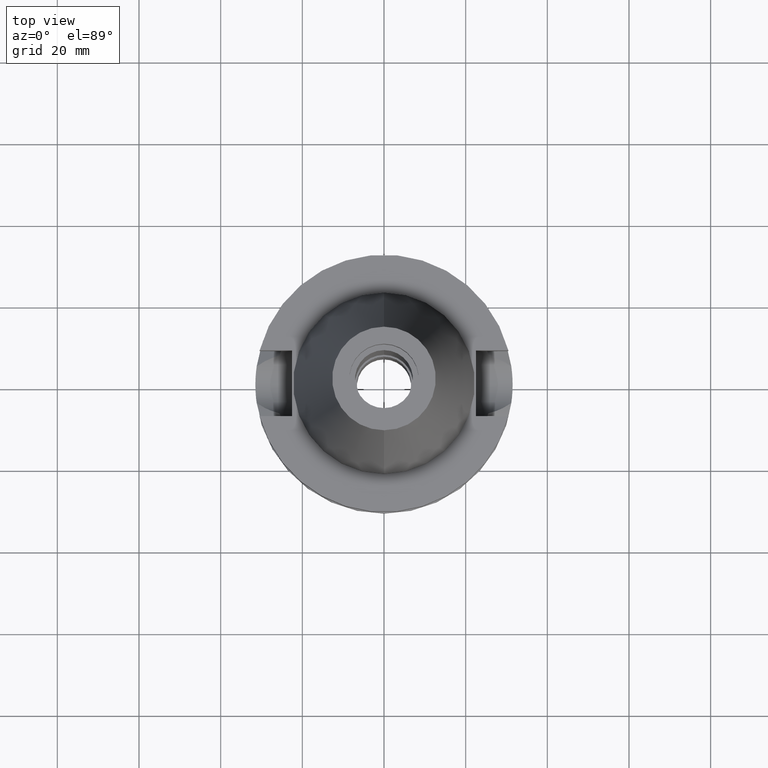
[diagram: clean part render]
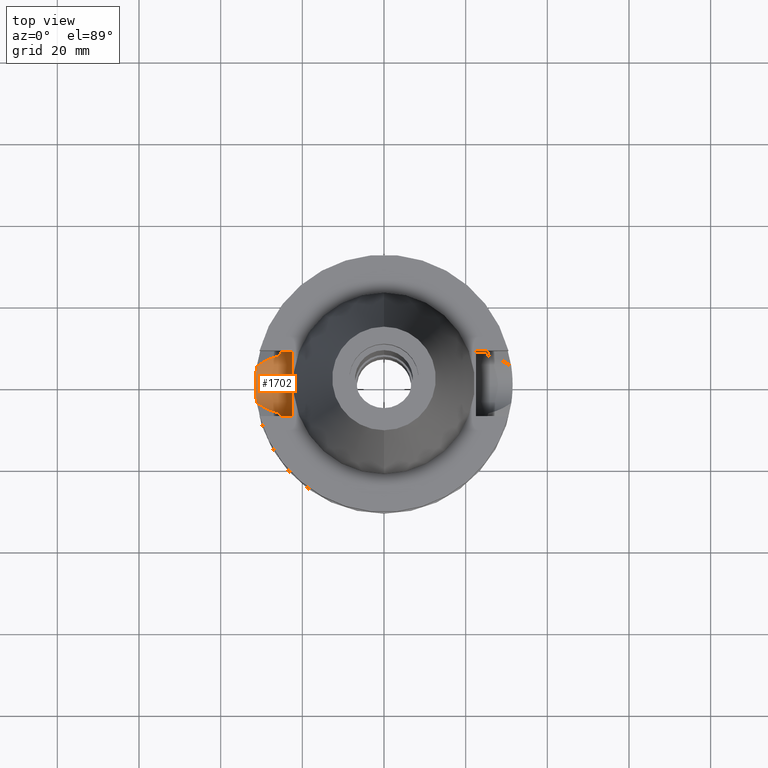
[diagram: same view with one face highlighted and labeled with its STEP entity id]
A machine part, top view. The second image highlights one B-rep face of the part: STEP entity #1702.
In plain terms, the highlighted cylindrical surface (edge-blend (fillet) strip) has radius 8.05 mm, axis along (-1, 0, 0).
Its self-contained STEP definition (entity closure, byte-faithful):
#97 = CARTESIAN_POINT ( 'NONE',  ( -25.53175183775000079, -7.097862220092999941, -18.74774300138999905 ) ) ;
#98 = CARTESIAN_POINT ( 'NONE',  ( -27.80186762477991280, 6.340377823589463446, -19.91138290903389674 ) ) ;
#117 = CARTESIAN_POINT ( 'NONE',  ( -28.96241475499983409, -5.826829770395927532, -20.50446749709296412 ) ) ;
#130 = FACE_OUTER_BOUND ( 'NONE', #1885, .T. ) ;
#143 = VERTEX_POINT ( 'NONE', #1389 ) ;
#172 = DIRECTION ( 'NONE',  ( 0.0000000000000000000, 0.0000000000000000000, -1.000000000000000000 ) ) ;
#183 = ORIENTED_EDGE ( 'NONE', *, *, #1530, .T. ) ;
#195 = VERTEX_POINT ( 'NONE', #1158 ) ;
#215 = CARTESIAN_POINT ( 'NONE',  ( -25.32844777903620681, -7.792527725354012169, -16.96974754110893002 ) ) ;
#265 = ORIENTED_EDGE ( 'NONE', *, *, #1101, .F. ) ;
#274 = B_SPLINE_CURVE_WITH_KNOTS ( 'NONE', 3,
 ( #3299, #3600, #3047, #516, #1899, #498, #1628, #2478, #215, #1342, #2424, #1063, #1587, #2773 ),
 .UNSPECIFIED., .F., .F.,
 ( 4, 2, 2, 1, 1, 2, 2, 4 ),
 ( 0.0000000000000000000, 0.2500000000000041078, 0.3750000000000073830, 0.4375000000000078826, 0.4687500000000093259, 0.4843750000000099365, 0.5000000000000105471, 1.000000000000000000 ),
 .UNSPECIFIED. ) ;
#309 = CARTESIAN_POINT ( 'NONE',  ( -31.28470547692829840, -3.750768100159064034, -22.12755020538207518 ) ) ;
#325 = CARTESIAN_POINT ( 'NONE',  ( -31.49253540246489536, -0.7829780335693035109, -22.97155374604022171 ) ) ;
#333 = CARTESIAN_POINT ( 'NONE',  ( -26.79449840290805795, 6.719479771365198140, -19.39575631949134760 ) ) ;
#344 = CARTESIAN_POINT ( 'NONE',  ( -31.44527646887210182, -1.857544946896778848, -22.78339309170337756 ) ) ;
#351 = CARTESIAN_POINT ( 'NONE',  ( -29.08039899030497466, 5.770905817290205242, -20.56470933253821443 ) ) ;
#384 = CARTESIAN_POINT ( 'NONE',  ( -31.17899877608999759, 4.485536235554000051, -21.63449434733000132 ) ) ;
#402 = CARTESIAN_POINT ( 'NONE',  ( -29.39981889050912400, -5.605877746671926509, -20.72777599618146382 ) ) ;
#408 = VERTEX_POINT ( 'NONE', #3545 ) ;
#411 = CARTESIAN_POINT ( 'NONE',  ( -25.29454954118293486, 7.902007388341837135, -16.48871296864345126 ) ) ;
#461 = CYLINDRICAL_SURFACE ( 'NONE', #2318, 8.050000000000000711 ) ;
#498 = CARTESIAN_POINT ( 'NONE',  ( -25.35412323723021544, -7.708830947932238331, -17.27007949472962878 ) ) ;
#516 = CARTESIAN_POINT ( 'NONE',  ( -25.39164951572487183, -7.584807667336966652, -17.65197957159458753 ) ) ;
#608 = CARTESIAN_POINT ( 'NONE',  ( -27.56759267384783740, 6.431641194127356798, -19.79151494877947215 ) ) ;
#616 = CARTESIAN_POINT ( 'NONE',  ( -31.50024232868986473, 0.7571333964143366346, -23.00095759426206499 ) ) ;
#621 = CARTESIAN_POINT ( 'NONE',  ( -31.17899877608999759, -4.485536235554000051, -21.63449434733000132 ) ) ;
#629 = VECTOR ( 'NONE', #1299, 1000.000000000000000 ) ;
#666 = CARTESIAN_POINT ( 'NONE',  ( -30.85566715959532402, -4.730837795196603857, -21.46988817411485684 ) ) ;
#710 = CARTESIAN_POINT ( 'NONE',  ( -25.31206084004277912, 7.845614529401188975, -16.75329855850928951 ) ) ;
#741 = CARTESIAN_POINT ( 'NONE',  ( -22.50000000000000000, -8.050000000000000711, -14.94999999999999929 ) ) ;
#776 = CARTESIAN_POINT ( 'NONE',  ( -25.24772266958000344, 8.050000000000000711, -14.94999999999999929 ) ) ;
#853 = CARTESIAN_POINT ( 'NONE',  ( -25.24772266958000344, 8.050000000000000711, -14.94999999999999929 ) ) ;
#872 = CARTESIAN_POINT ( 'NONE',  ( -31.41056491124587069, 2.372237050526222912, -22.64256036890056123 ) ) ;
#887 = CARTESIAN_POINT ( 'NONE',  ( -31.47150128874050168, 1.550917995535984639, -22.89093254494694563 ) ) ;
#911 = CARTESIAN_POINT ( 'NONE',  ( -26.19531547329091481, 6.915459947307001976, -19.08864711216948251 ) ) ;
#974 = EDGE_CURVE ( 'NONE', #3222, #1019, #1982, .T. ) ;
#1019 = VERTEX_POINT ( 'NONE', #2329 ) ;
#1063 = CARTESIAN_POINT ( 'NONE',  ( -25.27269391207093463, -7.973288729731969227, -16.24537813257547469 ) ) ;
#1074 = ORIENTED_EDGE ( 'NONE', *, *, #974, .T. ) ;
#1094 = ORIENTED_EDGE ( 'NONE', *, *, #1647, .F. ) ;
#1101 = EDGE_CURVE ( 'NONE', #3222, #1249, #3304, .T. ) ;
#1151 = CARTESIAN_POINT ( 'NONE',  ( -31.33704727451106820, 3.201741485571319323, -22.33858232039741054 ) ) ;
#1158 = CARTESIAN_POINT ( 'NONE',  ( -22.50000000000000000, -8.050000000000000711, -14.94999999999999929 ) ) ;
#1165 = CARTESIAN_POINT ( 'NONE',  ( -31.17899877608999759, 4.485536235554000051, -21.63449434733000132 ) ) ;
#1169 = CARTESIAN_POINT ( 'NONE',  ( -30.49988824880316329, -4.971524544896593234, -21.28877941382548400 ) ) ;
#1173 = CARTESIAN_POINT ( 'NONE',  ( -29.92556320744147058, 5.316957789776223464, -20.99587040959849915 ) ) ;
#1193 = CARTESIAN_POINT ( 'NONE',  ( -25.43789037938648789, 7.435491690473122084, -18.11672414062482162 ) ) ;
#1228 = CARTESIAN_POINT ( 'NONE',  ( -27.46559892626379451, 6.470389083415211573, -19.73931484843593154 ) ) ;
#1249 = VERTEX_POINT ( 'NONE', #2183 ) ;
#1250 = CARTESIAN_POINT ( 'NONE',  ( -25.31954826170013106, 7.821386849068008296, -16.85495274079638151 ) ) ;
#1270 = CARTESIAN_POINT ( 'NONE',  ( -25.31652402624243337, 7.831177078179816675, -16.81429685340951963 ) ) ;
#1299 = DIRECTION ( 'NONE',  ( -1.000000000000000000, 1.616208268639000174E-14, -1.034373291929000154E-14 ) ) ;
#1342 = CARTESIAN_POINT ( 'NONE',  ( -25.32550670071061916, -7.802071535306239092, -16.93256103013014169 ) ) ;
#1357 = CIRCLE ( 'NONE', #2953, 8.050000000000000711 ) ;
#1380 = DIRECTION ( 'NONE',  ( 1.000000000000000000, 1.551559937893000172E-14, -3.620306521749999889E-14 ) ) ;
#1389 = CARTESIAN_POINT ( 'NONE',  ( -25.24772266958000344, -8.050000000000000711, -14.94999999999999929 ) ) ;
#1427 = CARTESIAN_POINT ( 'NONE',  ( -31.17899877608999759, -4.485536235554000051, -21.63449434733000132 ) ) ;
#1444 = CARTESIAN_POINT ( 'NONE',  ( -31.39027486917530396, 2.628603510742625105, -22.55969012852260747 ) ) ;
#1461 = CARTESIAN_POINT ( 'NONE',  ( -31.43643257257468093, -2.003966855037653261, -22.74771882455730676 ) ) ;
#1480 = CARTESIAN_POINT ( 'NONE',  ( -28.90787425561670432, -5.853261070286155388, -20.47661666354747112 ) ) ;
#1485 = ORIENTED_EDGE ( 'NONE', *, *, #1719, .T. ) ;
#1502 = CARTESIAN_POINT ( 'NONE',  ( -30.86112095437446001, 4.726700172098827757, -21.47266466809871943 ) ) ;
#1530 = EDGE_CURVE ( 'NONE', #1019, #1598, #2903, .T. ) ;
#1543 = CARTESIAN_POINT ( 'NONE',  ( -27.91791818451807217, -6.325778375704873113, -19.97107508805649445 ) ) ;
#1550 = CARTESIAN_POINT ( 'NONE',  ( -25.25396625246039406, 8.030896711162544221, -15.59378553528499012 ) ) ;
#1573 = CARTESIAN_POINT ( 'NONE',  ( -25.32122245610177913, 7.815962707354302985, -16.87706809356129156 ) ) ;
#1584 = DIRECTION ( 'NONE',  ( -1.000000000000000000, 0.0000000000000000000, 0.0000000000000000000 ) ) ;
#1587 = CARTESIAN_POINT ( 'NONE',  ( -25.24772266957999989, -8.049999999999981171, -15.58999736273363546 ) ) ;
#1598 = VERTEX_POINT ( 'NONE', #2615 ) ;
#1628 = CARTESIAN_POINT ( 'NONE',  ( -25.34388450889784750, -7.742333382928174856, -17.15666984720027344 ) ) ;
#1647 = EDGE_CURVE ( 'NONE', #195, #143, #2966, .T. ) ;
#1702 = ADVANCED_FACE ( 'NONE', ( #130 ), #461, .F. ) ;
#1719 = EDGE_CURVE ( 'NONE', #3438, #1249, #2701, .T. ) ;
#1722 = CARTESIAN_POINT ( 'NONE',  ( -31.41623505044934817, -2.295962347423724736, -22.66567875136246002 ) ) ;
#1734 = CARTESIAN_POINT ( 'NONE',  ( -31.49987638199703355, -0.3937373737410969632, -22.99951167286950593 ) ) ;
#1751 = CARTESIAN_POINT ( 'NONE',  ( -31.37890571234710180, 2.759253316053839278, -22.51292583804529102 ) ) ;
#1755 = CARTESIAN_POINT ( 'NONE',  ( -29.91754894116869679, -5.321752639506825311, -20.99192593742373703 ) ) ;
#1776 = CARTESIAN_POINT ( 'NONE',  ( -29.29923135089809350, 5.659886606404718634, -20.67639207655642508 ) ) ;
#1885 = EDGE_LOOP ( 'NONE', ( #2593, #1094, #3377, #3500, #1485, #265, #1074, #183 ) ) ;
#1899 = CARTESIAN_POINT ( 'NONE',  ( -25.37573308857942322, -7.637710303739487117, -17.49818662950802306 ) ) ;
#1982 = B_SPLINE_CURVE_WITH_KNOTS ( 'NONE', 3,
 ( #1165, #2855, #2562, #1151, #2285, #1751, #1444, #2324, #3144, #872, #3425, #887, #616, #1734, #325, #2874, #3407, #344, #1461, #2008, #3131, #1722, #2579, #2842, #309, #1427 ),
 .UNSPECIFIED., .F., .F.,
 ( 4, 2, 2, 1, 1, 2, 2, 2, 2, 2, 1, 1, 2, 2, 4 ),
 ( 0.0000000000000000000, 0.1250000000000031364, 0.1875000000000047184, 0.2187500000000056066, 0.2343750000000062450, 0.2421875000000063005, 0.2500000000000063838, 0.5000000000000066613, 0.6250000000000068834, 0.6875000000000067724, 0.7187500000000066613, 0.7343750000000067724, 0.7421875000000067724, 0.7500000000000066613, 1.000000000000000000 ),
 .UNSPECIFIED. ) ;
#2008 = CARTESIAN_POINT ( 'NONE',  ( -31.42493032681629828, -2.174413258173092611, -22.70105836180329462 ) ) ;
#2031 = CARTESIAN_POINT ( 'NONE',  ( -22.50000000000000000, 1.807578675540999863E-14, -14.94999999999999929 ) ) ;
#2100 = CARTESIAN_POINT ( 'NONE',  ( -26.81195494858404871, -6.745956322093035418, -19.40544405633563230 ) ) ;
#2128 = EDGE_CURVE ( 'NONE', #195, #408, #1357, .T. ) ;
#2183 = CARTESIAN_POINT ( 'NONE',  ( -25.53175183775000079, 7.097862220092999941, -18.74774300138999905 ) ) ;
#2285 = CARTESIAN_POINT ( 'NONE',  ( -31.35484698255445224, 3.022878705303385427, -22.41324384625959354 ) ) ;
#2315 = CARTESIAN_POINT ( 'NONE',  ( -25.53175183775000079, 7.097862220092999941, -18.74774300138999905 ) ) ;
#2318 = AXIS2_PLACEMENT_3D ( 'NONE', #2688, #1584, #172 ) ;
#2324 = CARTESIAN_POINT ( 'NONE',  ( -31.40238352135572697, 2.478482150256739569, -22.60918600287847724 ) ) ;
#2329 = CARTESIAN_POINT ( 'NONE',  ( -31.17899877608999759, -4.485536235554000051, -21.63449434733000132 ) ) ;
#2344 = VECTOR ( 'NONE', #1380, 1000.000000000000000 ) ;
#2372 = CARTESIAN_POINT ( 'NONE',  ( -27.39725008733112332, 6.496136476950510996, -19.70433075545637891 ) ) ;
#2392 = CARTESIAN_POINT ( 'NONE',  ( -25.36818832151804770, 7.663695285312788208, -17.48840541837621743 ) ) ;
#2409 = CARTESIAN_POINT ( 'NONE',  ( -25.24772266958000344, 8.050000000000000711, -14.94999999999999929 ) ) ;
#2424 = CARTESIAN_POINT ( 'NONE',  ( -25.32419709970849553, -7.806318959900105270, -16.91578803901766292 ) ) ;
#2478 = CARTESIAN_POINT ( 'NONE',  ( -25.33293017119236268, -7.777974374871634566, -17.02562462713753177 ) ) ;
#2531 = EDGE_CURVE ( 'NONE', #1598, #143, #274, .T. ) ;
#2555 = DIRECTION ( 'NONE',  ( 1.000000000000000000, 0.0000000000000000000, 0.0000000000000000000 ) ) ;
#2562 = CARTESIAN_POINT ( 'NONE',  ( -31.27836648583606660, 3.744813399158533063, -22.08709055486568218 ) ) ;
#2579 = CARTESIAN_POINT ( 'NONE',  ( -31.41425586186309715, -2.322858716161529724, -22.65761362937715262 ) ) ;
#2593 = ORIENTED_EDGE ( 'NONE', *, *, #2531, .T. ) ;
#2601 = EDGE_CURVE ( 'NONE', #3438, #408, #2808, .T. ) ;
#2615 = CARTESIAN_POINT ( 'NONE',  ( -25.53175183775000079, -7.097862220092999941, -18.74774300138999905 ) ) ;
#2637 = CARTESIAN_POINT ( 'NONE',  ( -29.23902439439856593, -5.689665268999735126, -20.64570116261983657 ) ) ;
#2638 = CARTESIAN_POINT ( 'NONE',  ( -28.37664392056703733, 6.100223205339371901, -20.20526077228979389 ) ) ;
#2677 = CARTESIAN_POINT ( 'NONE',  ( -25.27269700110156592, 7.971767412704498845, -16.08147680839852356 ) ) ;
#2688 = CARTESIAN_POINT ( 'NONE',  ( -22.50000000000000000, 1.807578675540999863E-14, -14.94999999999999929 ) ) ;
#2701 = B_SPLINE_CURVE_WITH_KNOTS ( 'NONE', 3,
 ( #2409, #3223, #1550, #2677, #3525, #411, #3239, #710, #1270, #1250, #1573, #2392, #1193, #2974 ),
 .UNSPECIFIED., .F., .F.,
 ( 4, 2, 2, 1, 1, 2, 2, 4 ),
 ( 0.0000000000000000000, 0.2499999999999944489, 0.3749999999999909517, 0.4374999999999905076, 0.4687499999999915623, 0.4843749999999910072, 0.4999999999999904521, 1.000000000000000000 ),
 .UNSPECIFIED. ) ;
#2773 = CARTESIAN_POINT ( 'NONE',  ( -25.24772266958000344, -8.050000000000000711, -14.94999999999999929 ) ) ;
#2808 = LINE ( 'NONE', #853, #2344 ) ;
#2842 = CARTESIAN_POINT ( 'NONE',  ( -31.36260275698521482, -3.014870738529458638, -22.44700345725818380 ) ) ;
#2855 = CARTESIAN_POINT ( 'NONE',  ( -31.23220374065960314, 4.115708095070688799, -21.88266233714224640 ) ) ;
#2862 = CARTESIAN_POINT ( 'NONE',  ( -27.36173902296902583, 6.509397576646960282, -19.68615276734225716 ) ) ;
#2874 = CARTESIAN_POINT ( 'NONE',  ( -31.47069543721491769, -1.368873748139070923, -22.88521609265126600 ) ) ;
#2877 = CARTESIAN_POINT ( 'NONE',  ( -29.07366699752741113, -5.772145047152789310, -20.56127400008803008 ) ) ;
#2881 = CARTESIAN_POINT ( 'NONE',  ( -29.72262444886788657, 5.432525444494295641, -20.89238680110177881 ) ) ;
#2903 = B_SPLINE_CURVE_WITH_KNOTS ( 'NONE', 3,
 ( #621, #666, #1169, #1755, #2908, #402, #2637, #2877, #117, #1480, #1543, #2100, #97 ),
 .UNSPECIFIED., .F., .F.,
 ( 4, 2, 2, 1, 2, 2, 4 ),
 ( 0.0000000000000000000, 0.2499999999999956701, 0.3749999999999933942, 0.4374999999999924505, 0.4687499999999920619, 0.4999999999999915623, 1.000000000000000000 ),
 .UNSPECIFIED. ) ;
#2908 = CARTESIAN_POINT ( 'NONE',  ( -29.71532401504948950, -5.436691315748439557, -20.88878191450024246 ) ) ;
#2953 = AXIS2_PLACEMENT_3D ( 'NONE', #2031, #2555, #3644 ) ;
#2966 = LINE ( 'NONE', #741, #629 ) ;
#2974 = CARTESIAN_POINT ( 'NONE',  ( -25.53175183775000079, 7.097862220092999941, -18.74774300138999905 ) ) ;
#3047 = CARTESIAN_POINT ( 'NONE',  ( -25.44392837589916567, -7.408239565059886900, -18.11709494172728796 ) ) ;
#3131 = CARTESIAN_POINT ( 'NONE',  ( -31.41974700004597665, -2.247358039323430035, -22.67997564925673970 ) ) ;
#3138 = CARTESIAN_POINT ( 'NONE',  ( -31.17899877608999759, 4.485536235554000051, -21.63449434733000132 ) ) ;
#3144 = CARTESIAN_POINT ( 'NONE',  ( -31.40732536569322519, 2.414664100622499809, -22.62934834046703969 ) ) ;
#3222 = VERTEX_POINT ( 'NONE', #3138 ) ;
#3223 = CARTESIAN_POINT ( 'NONE',  ( -25.24772266958000699, 8.050000000000018474, -15.27000344021189804 ) ) ;
#3239 = CARTESIAN_POINT ( 'NONE',  ( -25.30215890781840926, 7.877570599500793413, -16.61088255776599709 ) ) ;
#3299 = CARTESIAN_POINT ( 'NONE',  ( -25.53175183775000079, -7.097862220092999941, -18.74774300138999905 ) ) ;
#3304 = B_SPLINE_CURVE_WITH_KNOTS ( 'NONE', 3,
 ( #384, #1502, #3454, #1173, #2881, #1776, #351, #3414, #2638, #3490, #98, #608, #1228, #2372, #2862, #333, #911, #2315 ),
 .UNSPECIFIED., .F., .F.,
 ( 4, 2, 2, 2, 2, 1, 1, 2, 2, 4 ),
 ( 0.0000000000000000000, 0.2499999999999970579, 0.3749999999999948375, 0.4999999999999925615, 0.6249999999999903411, 0.6874999999999892308, 0.7187499999999890088, 0.7343749999999896749, 0.7499999999999904521, 1.000000000000000000 ),
 .UNSPECIFIED. ) ;
#3377 = ORIENTED_EDGE ( 'NONE', *, *, #2128, .T. ) ;
#3407 = CARTESIAN_POINT ( 'NONE',  ( -31.46161069947298117, -1.564500927467319613, -22.84904545394604369 ) ) ;
#3414 = CARTESIAN_POINT ( 'NONE',  ( -28.61883714100519782, 5.991211994617476222, -20.32900284882830277 ) ) ;
#3425 = CARTESIAN_POINT ( 'NONE',  ( -31.41196838671981340, 2.353633167400985826, -22.64828270924286002 ) ) ;
#3438 = VERTEX_POINT ( 'NONE', #776 ) ;
#3454 = CARTESIAN_POINT ( 'NONE',  ( -30.50800601667560130, 4.966106917569513612, -21.29277997376089004 ) ) ;
#3490 = CARTESIAN_POINT ( 'NONE',  ( -27.99630131452716952, 6.260814675578851407, -20.01081440545673829 ) ) ;
#3500 = ORIENTED_EDGE ( 'NONE', *, *, #2601, .F. ) ;
#3525 = CARTESIAN_POINT ( 'NONE',  ( -25.28050147970205330, 7.946982733727907977, -16.24437200639999901 ) ) ;
#3545 = CARTESIAN_POINT ( 'NONE',  ( -22.50000000000000000, 8.050000000000000711, -14.94999999999999929 ) ) ;
#3600 = CARTESIAN_POINT ( 'NONE',  ( -25.48482038766596958, -7.266679548433801372, -18.43222872448819771 ) ) ;
#3644 = DIRECTION ( 'NONE',  ( 0.0000000000000000000, -1.000000000000000000, 1.917893035551997704E-14 ) ) ;